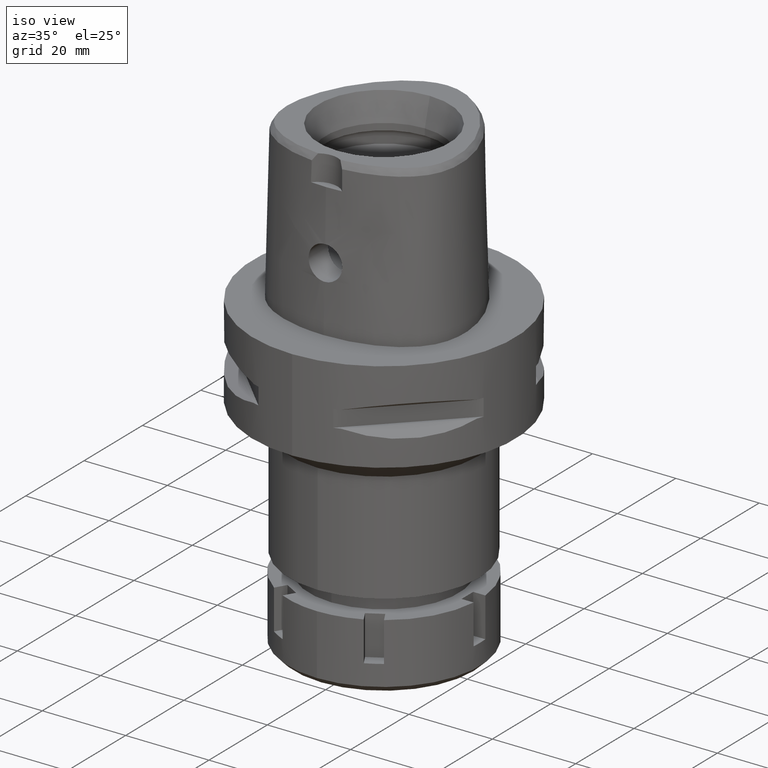
[diagram: clean part render]
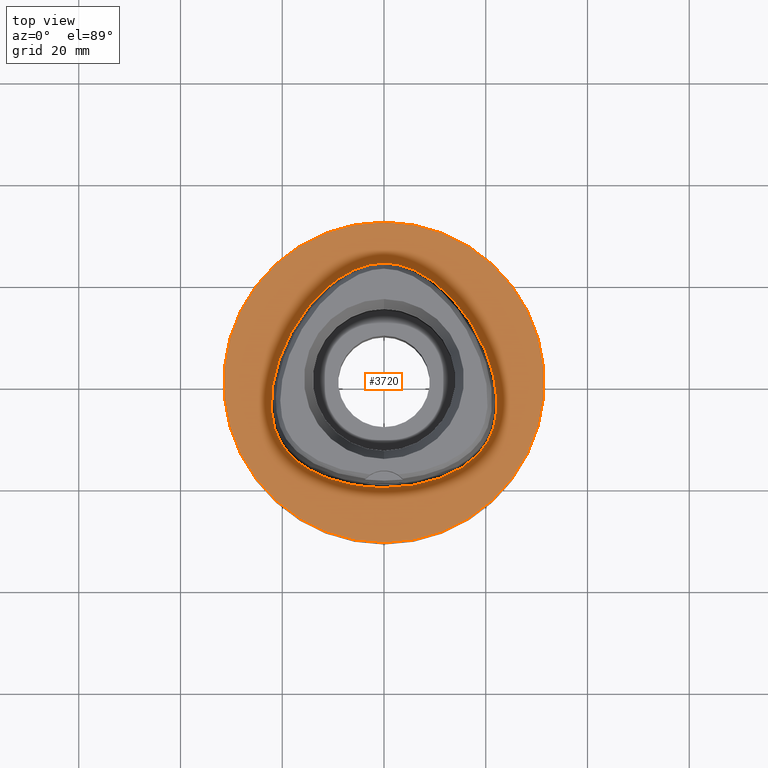
[diagram: tour spotlight — one face highlighted and labeled with its STEP entity id]
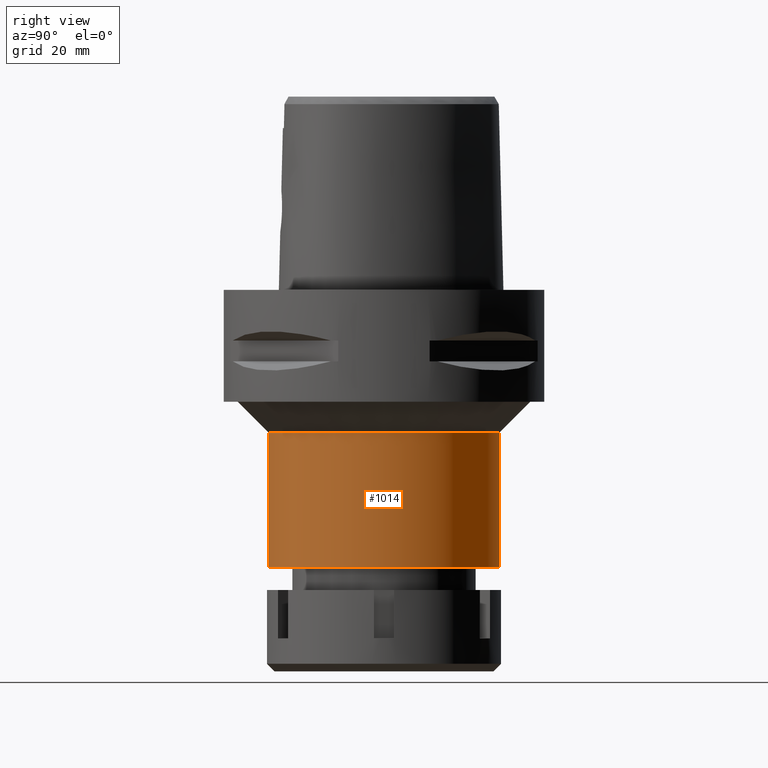
[diagram: tour spotlight — one face highlighted and labeled with its STEP entity id]
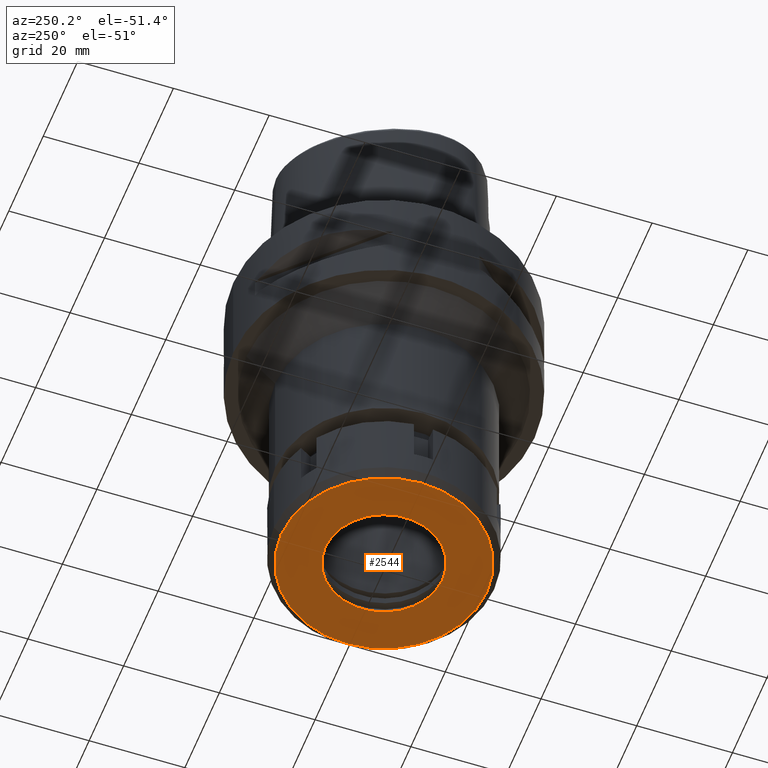
[diagram: tour spotlight — one face highlighted and labeled with its STEP entity id]
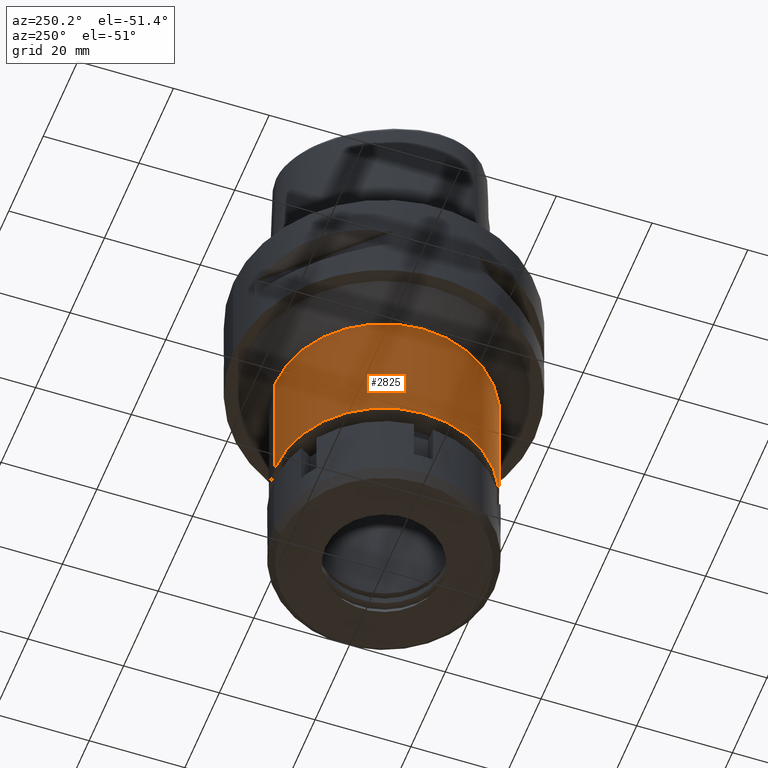
[diagram: tour spotlight — one face highlighted and labeled with its STEP entity id]
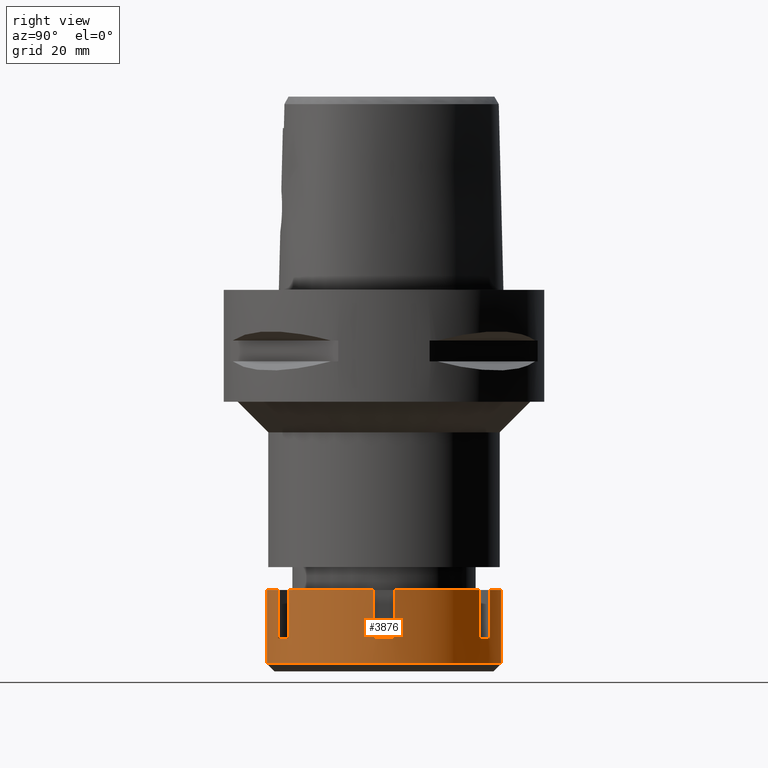
[diagram: tour spotlight — one face highlighted and labeled with its STEP entity id]
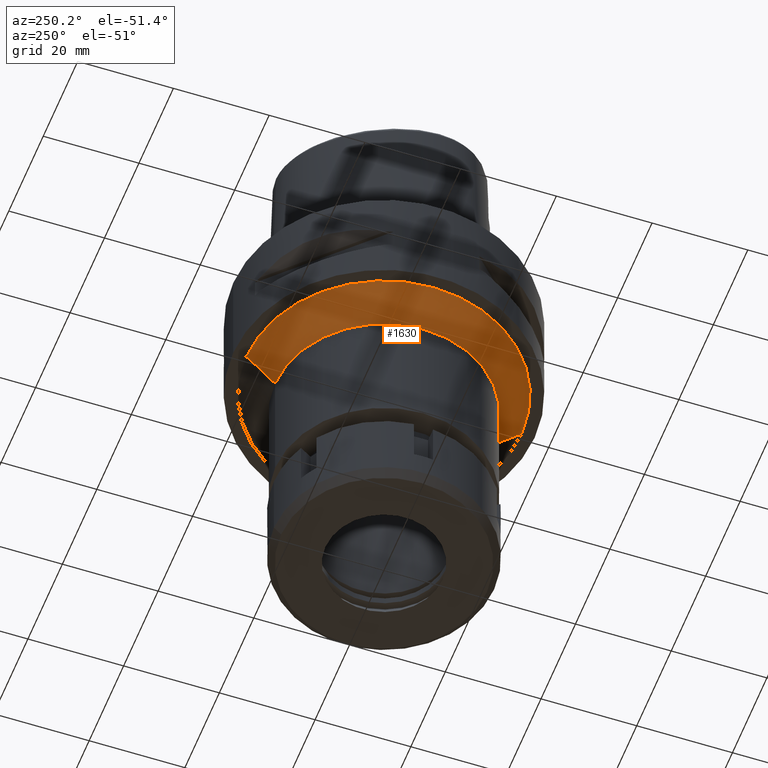
[diagram: tour spotlight — one face highlighted and labeled with its STEP entity id]
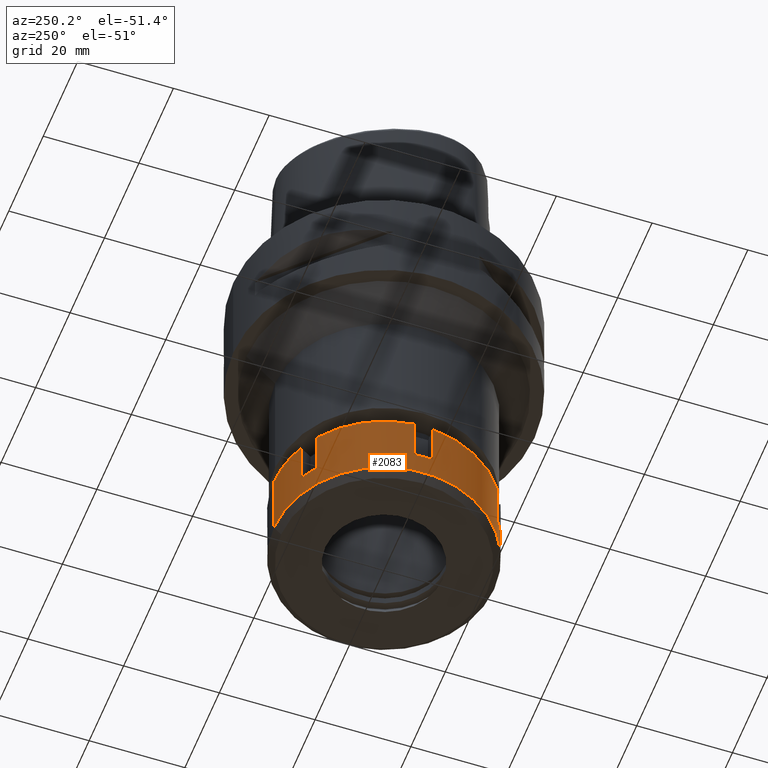
[diagram: tour spotlight — one face highlighted and labeled with its STEP entity id]
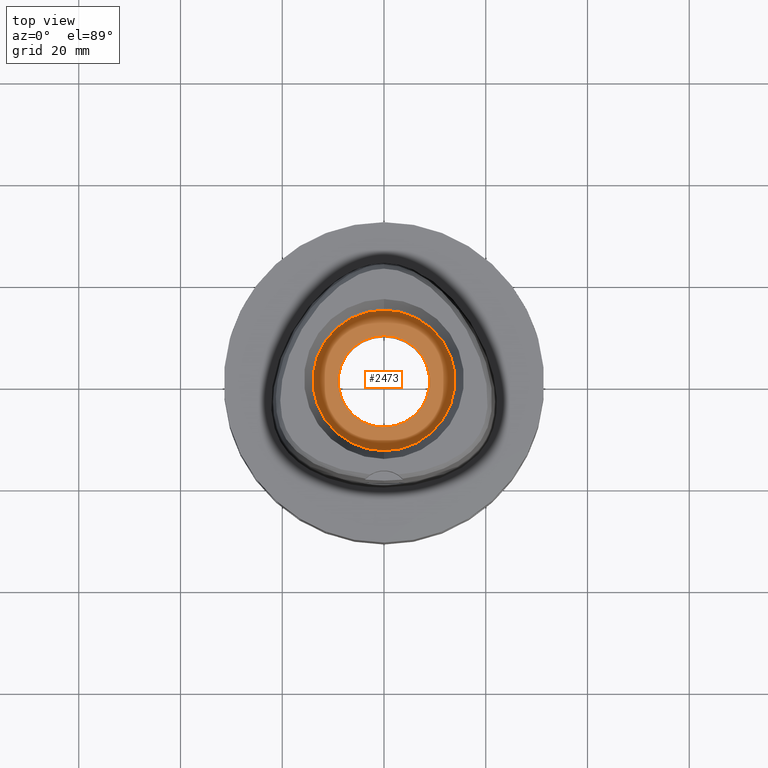
[diagram: tour spotlight — one face highlighted and labeled with its STEP entity id]
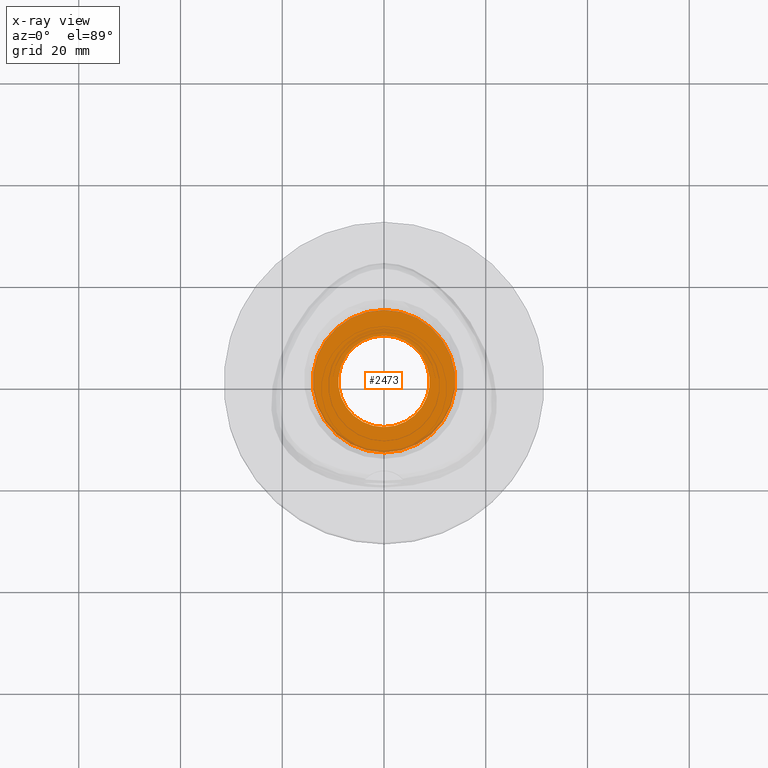
[diagram: x-ray of the same camera — body ghosted, this tour face saturated]
A machine part: a face-by-face anatomy tour. The part has 112 B-rep faces; the first image is the clean iso view, then the 8 largest visible faces are spotlighted one at a time (largest first), each with its STEP entity span.

Face 1 — top view, entity #3720. In plain terms, the highlighted planar face has unit normal (0, 0, -1).
Definition (entity closure, byte-faithful):
#8 = FACE_BOUND ( 'NONE', #2049, .T. ) ;
#88 = CARTESIAN_POINT ( 'NONE',  ( 0.0000000000000000000, 1.265672466918999865E-14, 0.0000000000000000000 ) ) ;
#187 = B_SPLINE_CURVE_WITH_KNOTS ( 'NONE', 3,
 ( #4892, #2000, #2367, #3636, #1640, #4127, #729, #2412, #4089, #1591, #5361, #5407, #2869, #2786, #4043, #260, #5303, #4533, #756, #340, #3717, #1723, #5001 ),
 .UNSPECIFIED., .F., .F.,
 ( 4, 1, 1, 1, 1, 1, 1, 1, 1, 1, 1, 1, 1, 1, 1, 1, 1, 1, 1, 1, 4 ),
 ( 0.0000000000000000000, 0.04166666666767999960, 0.08333333333429000789, 0.1250000000009000023, 0.1666666666676000219, 0.2500000000006999956, 0.3333333333339000282, 0.4166666666672000363, 0.5000000000004000134, 0.5416666666671000607, 0.5833333333336000459, 0.6250000000002999823, 0.6458333333335000148, 0.6666666666668999985, 0.6875000000001999512, 0.7083333333333999837, 0.7500000000001000311, 0.7916666666667000474, 0.8333333333333000637, 0.9166666666666000163, 1.000000000000000000 ),
 .UNSPECIFIED. ) ;
#204 = CARTESIAN_POINT ( 'NONE',  ( 5.098437016805039690, 22.52602538943070343, 5.133892459372943473E-08 ) ) ;
#220 = AXIS2_PLACEMENT_3D ( 'NONE', #977, #2286, #899 ) ;
#260 = CARTESIAN_POINT ( 'NONE',  ( -19.64947365162905513, -12.82525390115283948, 3.459377808626325213E-07 ) ) ;
#283 = CARTESIAN_POINT ( 'NONE',  ( 16.95889172514020871, -15.67838867086465626, 5.133892459372943473E-08 ) ) ;
#340 = CARTESIAN_POINT ( 'NONE',  ( -11.23259756429891887, -18.89324217933711836, 3.459377808626325213E-07 ) ) ;
#511 = DIRECTION ( 'NONE',  ( 0.0000000000000000000, -1.000000000000000000, 0.0000000000000000000 ) ) ;
#581 = VERTEX_POINT ( 'NONE', #712 ) ;
#596 = CARTESIAN_POINT ( 'NONE',  ( 6.589911981476000638E-11, 23.47499999998000320, 1.563934167354999746E-13 ) ) ;
#648 = CARTESIAN_POINT ( 'NONE',  ( 10.74572890975553108, 19.17433593651194101, 5.133892459372943473E-08 ) ) ;
#650 = ORIENTED_EDGE ( 'NONE', *, *, #3658, .F. ) ;
#712 = CARTESIAN_POINT ( 'NONE',  ( 0.0000000000000000000, 31.50000000000000000, 0.0000000000000000000 ) ) ;
#729 = CARTESIAN_POINT ( 'NONE',  ( -14.40795638293354664, 15.64093749438234049, 3.459377808626325213E-07 ) ) ;
#756 = CARTESIAN_POINT ( 'NONE',  ( -14.67337963990355121, -17.21410155496724670, 3.459377808626325213E-07 ) ) ;
#808 = FACE_OUTER_BOUND ( 'NONE', #3809, .T. ) ;
#892 = CARTESIAN_POINT ( 'NONE',  ( 0.0000000000000000000, -31.50000000000000000, 0.0000000000000000000 ) ) ;
#899 = DIRECTION ( 'NONE',  ( 0.0000000000000000000, 1.000000000000000000, 0.0000000000000000000 ) ) ;
#977 = CARTESIAN_POINT ( 'NONE',  ( 0.0000000000000000000, 1.265672466918999865E-14, 0.0000000000000000000 ) ) ;
#1001 = CARTESIAN_POINT ( 'NONE',  ( 0.8548392422176173122, 23.47499999872449195, 5.133892459372943473E-08 ) ) ;
#1024 = AXIS2_PLACEMENT_3D ( 'NONE', #88, #3331, #1670 ) ;
#1060 = CARTESIAN_POINT ( 'NONE',  ( 20.74942740758246984, 4.657187499561644906, 5.133892459372943473E-08 ) ) ;
#1087 = CARTESIAN_POINT ( 'NONE',  ( 21.97832647659170746, -0.2810937502245363095, 5.133892459372943473E-08 ) ) ;
#1532 = CARTESIAN_POINT ( 'NONE',  ( 18.06826688415234727, 10.43171874935659282, 5.133892459372943473E-08 ) ) ;
#1591 = CARTESIAN_POINT ( 'NONE',  ( -21.97832646930871903, -0.2810937515131003983, 3.459377808626325213E-07 ) ) ;
#1640 = CARTESIAN_POINT ( 'NONE',  ( -7.571159429969791077, 21.31457030501186267, 3.459377808626325213E-07 ) ) ;
#1670 = DIRECTION ( 'NONE',  ( 0.0000000000000000000, -1.000000000000000000, 0.0000000000000000000 ) ) ;
#1723 = CARTESIAN_POINT ( 'NONE',  ( -2.113823672550860344, -20.67499999135608846, 3.459377808626325213E-07 ) ) ;
#1924 = CARTESIAN_POINT ( 'NONE',  ( 22.24453907726493895, -4.100468750007731700, 5.133892459372943473E-08 ) ) ;
#1969 = CARTESIAN_POINT ( 'NONE',  ( 21.55524825886109141, -8.996025390257862853, 5.133892459372943473E-08 ) ) ;
#2000 = CARTESIAN_POINT ( 'NONE',  ( -0.8548392416841041896, 23.47499999135873949, 3.459377808626325213E-07 ) ) ;
#2049 = EDGE_LOOP ( 'NONE', ( #650, #2775 ) ) ;
#2136 = DIRECTION ( 'NONE',  ( 0.0000000000000000000, 0.0000000000000000000, -1.000000000000000000 ) ) ;
#2285 = CARTESIAN_POINT ( 'NONE',  ( 14.40795638859523642, 15.64093749916761666, 5.133892459372943473E-08 ) ) ;
#2286 = DIRECTION ( 'NONE',  ( 0.0000000000000000000, 0.0000000000000000000, -1.000000000000000000 ) ) ;
#2309 = CARTESIAN_POINT ( 'NONE',  ( 20.34961798445548453, -11.74885742122440035, 5.133892459372943473E-08 ) ) ;
#2327 = CARTESIAN_POINT ( 'NONE',  ( 6.589911981476000638E-11, 23.47499999998000320, 1.563934167354999746E-13 ) ) ;
#2348 = CIRCLE ( 'NONE', #220, 31.50000000000000000 ) ;
#2367 = CARTESIAN_POINT ( 'NONE',  ( -2.564517725179087826, 23.29328124148293355, 3.459377808626325213E-07 ) ) ;
#2368 = CARTESIAN_POINT ( 'NONE',  ( 20.93173252094357295, -10.60431640572513423, 5.133892459372943473E-08 ) ) ;
#2412 = CARTESIAN_POINT ( 'NONE',  ( -18.06826687773854090, 10.43171874565434898, 3.459377808626325213E-07 ) ) ;
#2611 = CIRCLE ( 'NONE', #1024, 31.50000000000000000 ) ;
#2775 = ORIENTED_EDGE ( 'NONE', *, *, #4422, .F. ) ;
#2786 = CARTESIAN_POINT ( 'NONE',  ( -20.93173251419439396, -10.60431640273427334, 3.459377808626325213E-07 ) ) ;
#2869 = CARTESIAN_POINT ( 'NONE',  ( -21.55524825177849024, -8.996025388152485647, 3.459377808626325213E-07 ) ) ;
#3197 = CARTESIAN_POINT ( 'NONE',  ( 19.64947365759156384, -12.82525390549806232, 5.133892459372943473E-08 ) ) ;
#3331 = DIRECTION ( 'NONE',  ( 0.0000000000000000000, 0.0000000000000000000, -1.000000000000000000 ) ) ;
#3545 = B_SPLINE_CURVE_WITH_KNOTS ( 'NONE', 3,
 ( #3964, #4845, #4428, #4374, #4066, #283, #3550, #3197, #2309, #2368, #1969, #5218, #1924, #1087, #1060, #1532, #2285, #648, #3990, #204, #4893, #1001, #596 ),
 .UNSPECIFIED., .F., .F.,
 ( 4, 1, 1, 1, 1, 1, 1, 1, 1, 1, 1, 1, 1, 1, 1, 1, 1, 1, 1, 1, 4 ),
 ( 0.0000000000000000000, 0.08333333333346000515, 0.1666666666668000230, 0.2083333333334000115, 0.2500000000000000000, 0.2916666666666999919, 0.3125000000000000000, 0.3333333333333000081, 0.3541666666666999919, 0.3750000000000000000, 0.4166666666666999919, 0.4583333333332000326, 0.4999999999998999689, 0.5833333333332000326, 0.6666666666664999852, 0.7499999999998000488, 0.8333333333329999704, 0.8749999999997000177, 0.9166666666664000651, 0.9583333333329999704, 1.000000000000000000 ),
 .UNSPECIFIED. ) ;
#3550 = CARTESIAN_POINT ( 'NONE',  ( 18.56841065047631645, -14.16937988192455045, 5.133892459372943473E-08 ) ) ;
#3636 = CARTESIAN_POINT ( 'NONE',  ( -5.098437014055448913, 22.52602538256833142, 3.459377808626325213E-07 ) ) ;
#3658 = EDGE_CURVE ( 'NONE', #4105, #5313, #187, .T. ) ;
#3703 = ORIENTED_EDGE ( 'NONE', *, *, #3891, .F. ) ;
#3717 = CARTESIAN_POINT ( 'NONE',  ( -6.341471017674845001, -20.29812499144884086, 3.459377808626325213E-07 ) ) ;
#3720 = ADVANCED_FACE ( 'NONE', ( #808, #8 ), #5439, .F. ) ;
#3809 = EDGE_LOOP ( 'NONE', ( #5231, #3703 ) ) ;
#3824 = CARTESIAN_POINT ( 'NONE',  ( -1.332771036187000036E-11, -20.67499999999999716, 1.592799965995999763E-13 ) ) ;
#3867 = VERTEX_POINT ( 'NONE', #892 ) ;
#3891 = EDGE_CURVE ( 'NONE', #3867, #581, #2611, .T. ) ;
#3964 = CARTESIAN_POINT ( 'NONE',  ( -1.332771036187000036E-11, -20.67499999999999716, 1.592799965995999763E-13 ) ) ;
#3990 = CARTESIAN_POINT ( 'NONE',  ( 7.571159433700400676, 21.31457031138521074, 5.133892459372943473E-08 ) ) ;
#4043 = CARTESIAN_POINT ( 'NONE',  ( -20.34961797806598582, -11.74885741753617552, 3.459377808626325213E-07 ) ) ;
#4066 = CARTESIAN_POINT ( 'NONE',  ( 14.67337964356189239, -17.21410156138248482, 5.133892459372943473E-08 ) ) ;
#4089 = CARTESIAN_POINT ( 'NONE',  ( -20.74942740061855417, 4.657187497051560321, 3.459377808626325213E-07 ) ) ;
#4105 = VERTEX_POINT ( 'NONE', #2327 ) ;
#4127 = CARTESIAN_POINT ( 'NONE',  ( -10.74572890499939959, 19.17433593084498966, 3.459377808626325213E-07 ) ) ;
#4288 = CARTESIAN_POINT ( 'NONE',  ( 0.0000000000000000000, 1.224646799146999965E-14, 0.0000000000000000000 ) ) ;
#4374 = CARTESIAN_POINT ( 'NONE',  ( 11.23259756683577137, -18.89324218628103580, 5.133892459372943473E-08 ) ) ;
#4422 = EDGE_CURVE ( 'NONE', #5313, #4105, #3545, .T. ) ;
#4428 = CARTESIAN_POINT ( 'NONE',  ( 6.341471018983529717, -20.29812499872887699, 5.133892459372944135E-08 ) ) ;
#4533 = CARTESIAN_POINT ( 'NONE',  ( -16.95889172056334004, -15.67838866504611417, 3.459377808626325213E-07 ) ) ;
#4845 = CARTESIAN_POINT ( 'NONE',  ( 2.113823672989667557, -20.67499999870904759, 5.133892459372943473E-08 ) ) ;
#4892 = CARTESIAN_POINT ( 'NONE',  ( 6.589911981476000638E-11, 23.47499999998000320, 1.563934167354999746E-13 ) ) ;
#4893 = CARTESIAN_POINT ( 'NONE',  ( 2.564517726692166377, 23.29328124873773476, 5.133892459372943473E-08 ) ) ;
#5001 = CARTESIAN_POINT ( 'NONE',  ( -1.332771036187000036E-11, -20.67499999999999716, 1.592799965995999763E-13 ) ) ;
#5218 = CARTESIAN_POINT ( 'NONE',  ( 22.05732874194318427, -6.847636718566505465, 5.133892459372943473E-08 ) ) ;
#5231 = ORIENTED_EDGE ( 'NONE', *, *, #5386, .F. ) ;
#5303 = CARTESIAN_POINT ( 'NONE',  ( -18.56841064512599360, -14.16937987684424272, 3.459377808626325213E-07 ) ) ;
#5313 = VERTEX_POINT ( 'NONE', #3824 ) ;
#5361 = CARTESIAN_POINT ( 'NONE',  ( -22.24453906986831342, -4.100468750050696443, 3.459377808626325213E-07 ) ) ;
#5386 = EDGE_CURVE ( 'NONE', #581, #3867, #2348, .T. ) ;
#5407 = CARTESIAN_POINT ( 'NONE',  ( -22.05732873462538990, -6.847636717514570925, 3.459377808626325213E-07 ) ) ;
#5410 = AXIS2_PLACEMENT_3D ( 'NONE', #4288, #2136, #511 ) ;
#5439 = PLANE ( 'NONE',  #5410 ) ;

Face 2 — right view, entity #1014. In plain terms, the highlighted cylindrical surface (partial cylindrical patch) has radius 22.75 mm, axis along (0, 0, -1).
Definition (entity closure, byte-faithful):
#3 = CARTESIAN_POINT ( 'NONE',  ( 0.0000000000000000000, -22.75000000000000000, -54.50000000000000000 ) ) ;
#214 = CARTESIAN_POINT ( 'NONE',  ( 0.0000000000000000000, 22.75000000000000000, -54.50000000000000000 ) ) ;
#300 = CIRCLE ( 'NONE', #3483, 22.75000000000000000 ) ;
#355 = DIRECTION ( 'NONE',  ( 0.0000000000000000000, 0.0000000000000000000, 1.000000000000000000 ) ) ;
#666 = AXIS2_PLACEMENT_3D ( 'NONE', #1339, #4212, #3060 ) ;
#849 = CARTESIAN_POINT ( 'NONE',  ( 0.0000000000000000000, 22.75000000000000000, -28.00000000000000000 ) ) ;
#867 = ORIENTED_EDGE ( 'NONE', *, *, #4778, .T. ) ;
#1014 = ADVANCED_FACE ( 'NONE', ( #2267 ), #2682, .T. ) ;
#1124 = AXIS2_PLACEMENT_3D ( 'NONE', #3974, #3998, #5229 ) ;
#1167 = EDGE_CURVE ( 'NONE', #1921, #2298, #3747, .T. ) ;
#1241 = ORIENTED_EDGE ( 'NONE', *, *, #3418, .T. ) ;
#1339 = CARTESIAN_POINT ( 'NONE',  ( 0.0000000000000000000, 0.0000000000000000000, -28.00000000000000000 ) ) ;
#1921 = VERTEX_POINT ( 'NONE', #3733 ) ;
#2068 = DIRECTION ( 'NONE',  ( 0.0000000000000000000, -1.000000000000000000, 0.0000000000000000000 ) ) ;
#2080 = CARTESIAN_POINT ( 'NONE',  ( 0.0000000000000000000, 1.265672466918999865E-14, -54.50000000000000000 ) ) ;
#2114 = CARTESIAN_POINT ( 'NONE',  ( 0.0000000000000000000, -22.75000000000000000, -28.00000000000000000 ) ) ;
#2267 = FACE_OUTER_BOUND ( 'NONE', #5179, .T. ) ;
#2298 = VERTEX_POINT ( 'NONE', #214 ) ;
#2682 = CYLINDRICAL_SURFACE ( 'NONE', #1124, 22.75000000000000000 ) ;
#3060 = DIRECTION ( 'NONE',  ( 0.0000000000000000000, 1.000000000000000000, 0.0000000000000000000 ) ) ;
#3088 = DIRECTION ( 'NONE',  ( 0.0000000000000000000, 0.0000000000000000000, -1.000000000000000000 ) ) ;
#3244 = VECTOR ( 'NONE', #3088, 1000.000000000000000 ) ;
#3414 = LINE ( 'NONE', #2114, #3574 ) ;
#3418 = EDGE_CURVE ( 'NONE', #1921, #4677, #5061, .T. ) ;
#3483 = AXIS2_PLACEMENT_3D ( 'NONE', #2080, #355, #2068 ) ;
#3540 = EDGE_CURVE ( 'NONE', #4677, #4532, #3414, .T. ) ;
#3574 = VECTOR ( 'NONE', #4614, 1000.000000000000000 ) ;
#3733 = CARTESIAN_POINT ( 'NONE',  ( 0.0000000000000000000, 22.75000000000000000, -28.00000000000000000 ) ) ;
#3747 = LINE ( 'NONE', #849, #3244 ) ;
#3974 = CARTESIAN_POINT ( 'NONE',  ( 0.0000000000000000000, 1.265672466918999865E-14, 3.350000000000000089 ) ) ;
#3991 = ORIENTED_EDGE ( 'NONE', *, *, #3540, .T. ) ;
#3998 = DIRECTION ( 'NONE',  ( 0.0000000000000000000, 0.0000000000000000000, -1.000000000000000000 ) ) ;
#4212 = DIRECTION ( 'NONE',  ( 0.0000000000000000000, 0.0000000000000000000, -1.000000000000000000 ) ) ;
#4393 = CARTESIAN_POINT ( 'NONE',  ( 0.0000000000000000000, -22.75000000000000000, -28.00000000000000000 ) ) ;
#4532 = VERTEX_POINT ( 'NONE', #3 ) ;
#4614 = DIRECTION ( 'NONE',  ( 0.0000000000000000000, 0.0000000000000000000, -1.000000000000000000 ) ) ;
#4677 = VERTEX_POINT ( 'NONE', #4393 ) ;
#4745 = ORIENTED_EDGE ( 'NONE', *, *, #1167, .F. ) ;
#4778 = EDGE_CURVE ( 'NONE', #4532, #2298, #300, .T. ) ;
#5061 = CIRCLE ( 'NONE', #666, 22.75000000000000000 ) ;
#5179 = EDGE_LOOP ( 'NONE', ( #1241, #3991, #867, #4745 ) ) ;
#5229 = DIRECTION ( 'NONE',  ( 0.0000000000000000000, -1.000000000000000000, 0.0000000000000000000 ) ) ;

Face 3 — auxiliary view, entity #2544. In plain terms, the highlighted planar face has unit normal (0, 0, -1).
Definition (entity closure, byte-faithful):
#59 = EDGE_CURVE ( 'NONE', #4412, #875, #4543, .T. ) ;
#67 = AXIS2_PLACEMENT_3D ( 'NONE', #4763, #4345, #3527 ) ;
#163 = EDGE_LOOP ( 'NONE', ( #4834, #4441 ) ) ;
#485 = CARTESIAN_POINT ( 'NONE',  ( 0.0000000000000000000, -12.25000000000000000, -16.00000000000000000 ) ) ;
#682 = EDGE_CURVE ( 'NONE', #2386, #4131, #3326, .T. ) ;
#751 = AXIS2_PLACEMENT_3D ( 'NONE', #874, #2058, #790 ) ;
#753 = AXIS2_PLACEMENT_3D ( 'NONE', #1967, #3768, #5406 ) ;
#790 = DIRECTION ( 'NONE',  ( 0.0000000000000000000, -1.000000000000000000, 0.0000000000000000000 ) ) ;
#814 = DIRECTION ( 'NONE',  ( 0.0000000000000000000, -1.000000000000000000, 0.0000000000000000000 ) ) ;
#874 = CARTESIAN_POINT ( 'NONE',  ( 0.0000000000000000000, 0.0000000000000000000, -16.00000000000000000 ) ) ;
#875 = VERTEX_POINT ( 'NONE', #4438 ) ;
#1183 = EDGE_LOOP ( 'NONE', ( #4452, #2226 ) ) ;
#1634 = DIRECTION ( 'NONE',  ( 0.0000000000000000000, 0.0000000000000000000, -1.000000000000000000 ) ) ;
#1826 = AXIS2_PLACEMENT_3D ( 'NONE', #3338, #1977, #814 ) ;
#1845 = PLANE ( 'NONE',  #67 ) ;
#1967 = CARTESIAN_POINT ( 'NONE',  ( 0.0000000000000000000, 0.0000000000000000000, -16.00000000000000000 ) ) ;
#1977 = DIRECTION ( 'NONE',  ( 0.0000000000000000000, 0.0000000000000000000, -1.000000000000000000 ) ) ;
#2010 = EDGE_CURVE ( 'NONE', #4131, #2386, #4558, .T. ) ;
#2058 = DIRECTION ( 'NONE',  ( 0.0000000000000000000, 0.0000000000000000000, 1.000000000000000000 ) ) ;
#2219 = CARTESIAN_POINT ( 'NONE',  ( 0.0000000000000000000, 12.25000000000000000, -16.00000000000000000 ) ) ;
#2226 = ORIENTED_EDGE ( 'NONE', *, *, #682, .F. ) ;
#2386 = VERTEX_POINT ( 'NONE', #485 ) ;
#2468 = DIRECTION ( 'NONE',  ( 0.0000000000000000000, 1.000000000000000000, 0.0000000000000000000 ) ) ;
#2544 = ADVANCED_FACE ( 'NONE', ( #2710, #5195 ), #1845, .T. ) ;
#2710 = FACE_OUTER_BOUND ( 'NONE', #163, .T. ) ;
#3326 = CIRCLE ( 'NONE', #1826, 12.25000000000000000 ) ;
#3338 = CARTESIAN_POINT ( 'NONE',  ( 0.0000000000000000000, 0.0000000000000000000, -16.00000000000000000 ) ) ;
#3487 = CIRCLE ( 'NONE', #751, 21.50000000000000000 ) ;
#3527 = DIRECTION ( 'NONE',  ( 0.0000000000000000000, -1.000000000000000000, 0.0000000000000000000 ) ) ;
#3689 = AXIS2_PLACEMENT_3D ( 'NONE', #4938, #1634, #2468 ) ;
#3768 = DIRECTION ( 'NONE',  ( 0.0000000000000000000, 0.0000000000000000000, 1.000000000000000000 ) ) ;
#3954 = CARTESIAN_POINT ( 'NONE',  ( 0.0000000000000000000, 21.50000000000000000, -16.00000000000000000 ) ) ;
#4131 = VERTEX_POINT ( 'NONE', #2219 ) ;
#4345 = DIRECTION ( 'NONE',  ( 0.0000000000000000000, 0.0000000000000000000, -1.000000000000000000 ) ) ;
#4412 = VERTEX_POINT ( 'NONE', #3954 ) ;
#4438 = CARTESIAN_POINT ( 'NONE',  ( 0.0000000000000000000, -21.50000000000000000, -16.00000000000000000 ) ) ;
#4441 = ORIENTED_EDGE ( 'NONE', *, *, #5221, .F. ) ;
#4452 = ORIENTED_EDGE ( 'NONE', *, *, #2010, .F. ) ;
#4543 = CIRCLE ( 'NONE', #753, 21.50000000000000000 ) ;
#4558 = CIRCLE ( 'NONE', #3689, 12.25000000000000000 ) ;
#4763 = CARTESIAN_POINT ( 'NONE',  ( 0.0000000000000000000, 0.0000000000000000000, -16.00000000000000000 ) ) ;
#4834 = ORIENTED_EDGE ( 'NONE', *, *, #59, .F. ) ;
#4938 = CARTESIAN_POINT ( 'NONE',  ( 0.0000000000000000000, 0.0000000000000000000, -16.00000000000000000 ) ) ;
#5195 = FACE_BOUND ( 'NONE', #1183, .T. ) ;
#5221 = EDGE_CURVE ( 'NONE', #875, #4412, #3487, .T. ) ;
#5406 = DIRECTION ( 'NONE',  ( 0.0000000000000000000, 1.000000000000000000, 0.0000000000000000000 ) ) ;

Face 4 — auxiliary view, entity #2825. In plain terms, the highlighted cylindrical surface (partial cylindrical patch) has radius 22.75 mm, axis along (0, 0, -1).
Definition (entity closure, byte-faithful):
#3 = CARTESIAN_POINT ( 'NONE',  ( 0.0000000000000000000, -22.75000000000000000, -54.50000000000000000 ) ) ;
#214 = CARTESIAN_POINT ( 'NONE',  ( 0.0000000000000000000, 22.75000000000000000, -54.50000000000000000 ) ) ;
#415 = CYLINDRICAL_SURFACE ( 'NONE', #5265, 22.75000000000000000 ) ;
#464 = EDGE_CURVE ( 'NONE', #2298, #4532, #2892, .T. ) ;
#725 = ORIENTED_EDGE ( 'NONE', *, *, #1167, .T. ) ;
#849 = CARTESIAN_POINT ( 'NONE',  ( 0.0000000000000000000, 22.75000000000000000, -28.00000000000000000 ) ) ;
#1167 = EDGE_CURVE ( 'NONE', #1921, #2298, #3747, .T. ) ;
#1714 = DIRECTION ( 'NONE',  ( 0.0000000000000000000, 0.0000000000000000000, -1.000000000000000000 ) ) ;
#1851 = EDGE_LOOP ( 'NONE', ( #4786, #2750, #2900, #725 ) ) ;
#1921 = VERTEX_POINT ( 'NONE', #3733 ) ;
#2103 = DIRECTION ( 'NONE',  ( 0.0000000000000000000, -1.000000000000000000, 0.0000000000000000000 ) ) ;
#2114 = CARTESIAN_POINT ( 'NONE',  ( 0.0000000000000000000, -22.75000000000000000, -28.00000000000000000 ) ) ;
#2227 = DIRECTION ( 'NONE',  ( 0.0000000000000000000, -1.000000000000000000, 0.0000000000000000000 ) ) ;
#2298 = VERTEX_POINT ( 'NONE', #214 ) ;
#2374 = DIRECTION ( 'NONE',  ( 0.0000000000000000000, 0.0000000000000000000, 1.000000000000000000 ) ) ;
#2461 = EDGE_CURVE ( 'NONE', #4677, #1921, #4738, .T. ) ;
#2750 = ORIENTED_EDGE ( 'NONE', *, *, #3540, .F. ) ;
#2770 = DIRECTION ( 'NONE',  ( 0.0000000000000000000, 1.000000000000000000, 0.0000000000000000000 ) ) ;
#2825 = ADVANCED_FACE ( 'NONE', ( #4691 ), #415, .T. ) ;
#2892 = CIRCLE ( 'NONE', #3586, 22.75000000000000000 ) ;
#2900 = ORIENTED_EDGE ( 'NONE', *, *, #2461, .T. ) ;
#3088 = DIRECTION ( 'NONE',  ( 0.0000000000000000000, 0.0000000000000000000, -1.000000000000000000 ) ) ;
#3204 = CARTESIAN_POINT ( 'NONE',  ( 0.0000000000000000000, 1.265672466918999865E-14, -54.50000000000000000 ) ) ;
#3244 = VECTOR ( 'NONE', #3088, 1000.000000000000000 ) ;
#3414 = LINE ( 'NONE', #2114, #3574 ) ;
#3540 = EDGE_CURVE ( 'NONE', #4677, #4532, #3414, .T. ) ;
#3574 = VECTOR ( 'NONE', #4614, 1000.000000000000000 ) ;
#3586 = AXIS2_PLACEMENT_3D ( 'NONE', #3204, #2374, #2770 ) ;
#3733 = CARTESIAN_POINT ( 'NONE',  ( 0.0000000000000000000, 22.75000000000000000, -28.00000000000000000 ) ) ;
#3747 = LINE ( 'NONE', #849, #3244 ) ;
#3863 = AXIS2_PLACEMENT_3D ( 'NONE', #3940, #5258, #2227 ) ;
#3940 = CARTESIAN_POINT ( 'NONE',  ( 0.0000000000000000000, 0.0000000000000000000, -28.00000000000000000 ) ) ;
#4251 = CARTESIAN_POINT ( 'NONE',  ( 0.0000000000000000000, 1.265672466918999865E-14, 3.350000000000000089 ) ) ;
#4393 = CARTESIAN_POINT ( 'NONE',  ( 0.0000000000000000000, -22.75000000000000000, -28.00000000000000000 ) ) ;
#4532 = VERTEX_POINT ( 'NONE', #3 ) ;
#4614 = DIRECTION ( 'NONE',  ( 0.0000000000000000000, 0.0000000000000000000, -1.000000000000000000 ) ) ;
#4677 = VERTEX_POINT ( 'NONE', #4393 ) ;
#4691 = FACE_OUTER_BOUND ( 'NONE', #1851, .T. ) ;
#4738 = CIRCLE ( 'NONE', #3863, 22.75000000000000000 ) ;
#4786 = ORIENTED_EDGE ( 'NONE', *, *, #464, .T. ) ;
#5258 = DIRECTION ( 'NONE',  ( 0.0000000000000000000, 0.0000000000000000000, -1.000000000000000000 ) ) ;
#5265 = AXIS2_PLACEMENT_3D ( 'NONE', #4251, #1714, #2103 ) ;

Face 5 — right view, entity #3876. In plain terms, the highlighted cylindrical surface (partial cylindrical patch) has radius 23 mm, axis along (0, 0, -1).
Definition (entity closure, byte-faithful):
#20 = ORIENTED_EDGE ( 'NONE', *, *, #625, .F. ) ;
#184 = EDGE_CURVE ( 'NONE', #3948, #3417, #1720, .T. ) ;
#185 = EDGE_LOOP ( 'NONE', ( #1404, #3186, #189, #5232, #2198, #291, #3879, #1559, #20, #2459, #1528, #3611, #440, #1137, #1783, #3985 ) ) ;
#189 = ORIENTED_EDGE ( 'NONE', *, *, #5155, .F. ) ;
#238 = CIRCLE ( 'NONE', #3333, 22.99999999999999289 ) ;
#291 = ORIENTED_EDGE ( 'NONE', *, *, #501, .T. ) ;
#351 = VERTEX_POINT ( 'NONE', #4911 ) ;
#394 = CIRCLE ( 'NONE', #4094, 23.00000000000000355 ) ;
#422 = CARTESIAN_POINT ( 'NONE',  ( 9.724388429822001356, 20.84313483297999881, -9.500000000000000000 ) ) ;
#440 = ORIENTED_EDGE ( 'NONE', *, *, #4994, .F. ) ;
#443 = EDGE_CURVE ( 'NONE', #4298, #5357, #4641, .T. ) ;
#471 = EDGE_CURVE ( 'NONE', #1120, #3417, #1202, .T. ) ;
#495 = EDGE_CURVE ( 'NONE', #4076, #5266, #1452, .T. ) ;
#501 = EDGE_CURVE ( 'NONE', #4867, #5266, #2003, .T. ) ;
#625 = EDGE_CURVE ( 'NONE', #4401, #1628, #4159, .T. ) ;
#834 = CIRCLE ( 'NONE', #3923, 23.00000000000000355 ) ;
#842 = AXIS2_PLACEMENT_3D ( 'NONE', #2163, #3025, #3769 ) ;
#852 = VECTOR ( 'NONE', #4593, 1000.000000000000000 ) ;
#905 = DIRECTION ( 'NONE',  ( 0.9962121075990957308, 0.08695652173912968297, 0.0000000000000000000 ) ) ;
#919 = CARTESIAN_POINT ( 'NONE',  ( 0.0000000000000000000, 23.00000000000000000, -14.50000000000000000 ) ) ;
#1017 = VECTOR ( 'NONE', #5140, 1000.000000000000000 ) ;
#1021 = CARTESIAN_POINT ( 'NONE',  ( 22.91287847478000117, 2.000000000000000000, -9.500000000000000000 ) ) ;
#1040 = CARTESIAN_POINT ( 'NONE',  ( 0.0000000000000000000, 0.0000000000000000000, 0.0000000000000000000 ) ) ;
#1120 = VERTEX_POINT ( 'NONE', #2644 ) ;
#1137 = ORIENTED_EDGE ( 'NONE', *, *, #471, .T. ) ;
#1178 = CARTESIAN_POINT ( 'NONE',  ( 22.91287847478000117, 2.000000000000000000, -9.500000000000000000 ) ) ;
#1202 = CIRCLE ( 'NONE', #1379, 23.00000000000000000 ) ;
#1209 = DIRECTION ( 'NONE',  ( 0.0000000000000000000, 0.0000000000000000000, 1.000000000000000000 ) ) ;
#1325 = DIRECTION ( 'NONE',  ( 0.0000000000000000000, 0.0000000000000000000, -1.000000000000000000 ) ) ;
#1326 = DIRECTION ( 'NONE',  ( 0.4227994969487119392, -0.9062232536080258027, 0.0000000000000000000 ) ) ;
#1336 = FACE_OUTER_BOUND ( 'NONE', #185, .T. ) ;
#1348 = DIRECTION ( 'NONE',  ( 0.0000000000000000000, 0.0000000000000000000, -1.000000000000000000 ) ) ;
#1350 = DIRECTION ( 'NONE',  ( 0.0000000000000000000, 0.0000000000000000000, 1.000000000000000000 ) ) ;
#1379 = AXIS2_PLACEMENT_3D ( 'NONE', #1040, #3995, #4876 ) ;
#1404 = ORIENTED_EDGE ( 'NONE', *, *, #3789, .F. ) ;
#1426 = DIRECTION ( 'NONE',  ( 0.0000000000000000000, 0.0000000000000000000, -1.000000000000000000 ) ) ;
#1452 = LINE ( 'NONE', #5263, #4464 ) ;
#1528 = ORIENTED_EDGE ( 'NONE', *, *, #5359, .T. ) ;
#1559 = ORIENTED_EDGE ( 'NONE', *, *, #3692, .T. ) ;
#1628 = VERTEX_POINT ( 'NONE', #3715 ) ;
#1715 = DIRECTION ( 'NONE',  ( 0.5734126106503841802, 0.8192667318688773292, 0.0000000000000000000 ) ) ;
#1720 = LINE ( 'NONE', #422, #4635 ) ;
#1721 = VECTOR ( 'NONE', #1348, 1000.000000000000000 ) ;
#1728 = CARTESIAN_POINT ( 'NONE',  ( 0.0000000000000000000, -23.00000000000000000, 0.0000000000000000000 ) ) ;
#1741 = DIRECTION ( 'NONE',  ( 0.0000000000000000000, 0.0000000000000000000, -1.000000000000000000 ) ) ;
#1758 = DIRECTION ( 'NONE',  ( 0.0000000000000000000, 0.0000000000000000000, -1.000000000000000000 ) ) ;
#1783 = ORIENTED_EDGE ( 'NONE', *, *, #184, .F. ) ;
#1827 = AXIS2_PLACEMENT_3D ( 'NONE', #5092, #1325, #905 ) ;
#1901 = DIRECTION ( 'NONE',  ( 0.9962121075990957308, -0.08695652173912968297, 0.0000000000000000000 ) ) ;
#1944 = EDGE_CURVE ( 'NONE', #3948, #4685, #4476, .T. ) ;
#2003 = CIRCLE ( 'NONE', #2813, 23.00000000000000355 ) ;
#2021 = DIRECTION ( 'NONE',  ( 0.0000000000000000000, 0.0000000000000000000, -1.000000000000000000 ) ) ;
#2035 = LINE ( 'NONE', #1178, #4188 ) ;
#2081 = DIRECTION ( 'NONE',  ( 0.5734126106504978670, -0.8192667318687978373, 0.0000000000000000000 ) ) ;
#2147 = EDGE_CURVE ( 'NONE', #351, #3302, #238, .T. ) ;
#2163 = CARTESIAN_POINT ( 'NONE',  ( 0.0000000000000000000, 0.0000000000000000000, 0.0000000000000000000 ) ) ;
#2195 = DIRECTION ( 'NONE',  ( 0.0000000000000000000, 0.0000000000000000000, -1.000000000000000000 ) ) ;
#2198 = ORIENTED_EDGE ( 'NONE', *, *, #5014, .F. ) ;
#2232 = LINE ( 'NONE', #3914, #1017 ) ;
#2271 = VERTEX_POINT ( 'NONE', #4770 ) ;
#2349 = VECTOR ( 'NONE', #2195, 1000.000000000000000 ) ;
#2384 = DIRECTION ( 'NONE',  ( 0.4227994969487938182, 0.9062232536079875000, 0.0000000000000000000 ) ) ;
#2459 = ORIENTED_EDGE ( 'NONE', *, *, #4862, .T. ) ;
#2498 = LINE ( 'NONE', #3818, #2349 ) ;
#2586 = CARTESIAN_POINT ( 'NONE',  ( 9.724388429822001356, 20.84313483297999881, 0.0000000000000000000 ) ) ;
#2631 = CARTESIAN_POINT ( 'NONE',  ( 0.0000000000000000000, 0.0000000000000000000, -14.50000000000000000 ) ) ;
#2644 = CARTESIAN_POINT ( 'NONE',  ( 0.0000000000000000000, 23.00000000000000000, 0.0000000000000000000 ) ) ;
#2705 = VECTOR ( 'NONE', #1758, 1000.000000000000000 ) ;
#2813 = AXIS2_PLACEMENT_3D ( 'NONE', #3644, #1426, #1901 ) ;
#2905 = CARTESIAN_POINT ( 'NONE',  ( 13.18849004495999999, -18.84313483298000236, 0.0000000000000000000 ) ) ;
#2912 = EDGE_CURVE ( 'NONE', #2271, #3340, #4998, .T. ) ;
#3025 = DIRECTION ( 'NONE',  ( 0.0000000000000000000, 0.0000000000000000000, -1.000000000000000000 ) ) ;
#3120 = CARTESIAN_POINT ( 'NONE',  ( 0.0000000000000000000, 23.00000000000000000, 0.0000000000000000000 ) ) ;
#3186 = ORIENTED_EDGE ( 'NONE', *, *, #2147, .T. ) ;
#3302 = VERTEX_POINT ( 'NONE', #3668 ) ;
#3333 = AXIS2_PLACEMENT_3D ( 'NONE', #4252, #4636, #1715 ) ;
#3340 = VERTEX_POINT ( 'NONE', #919 ) ;
#3357 = CYLINDRICAL_SURFACE ( 'NONE', #842, 23.00000000000000000 ) ;
#3408 = DIRECTION ( 'NONE',  ( 0.0000000000000000000, 0.0000000000000000000, 1.000000000000000000 ) ) ;
#3417 = VERTEX_POINT ( 'NONE', #2586 ) ;
#3426 = CARTESIAN_POINT ( 'NONE',  ( 22.91287847478000117, -2.000000000000000000, 0.0000000000000000000 ) ) ;
#3482 = CARTESIAN_POINT ( 'NONE',  ( 13.18849004495999999, 18.84313483298000236, -9.500000000000000000 ) ) ;
#3514 = VERTEX_POINT ( 'NONE', #1728 ) ;
#3520 = CARTESIAN_POINT ( 'NONE',  ( 13.18849004495999999, -18.84313483298000236, -9.500000000000000000 ) ) ;
#3611 = ORIENTED_EDGE ( 'NONE', *, *, #2912, .T. ) ;
#3644 = CARTESIAN_POINT ( 'NONE',  ( 0.0000000000000000000, 0.0000000000000000000, 0.0000000000000000000 ) ) ;
#3668 = CARTESIAN_POINT ( 'NONE',  ( 22.91287847478000117, 2.000000000000000000, 0.0000000000000000000 ) ) ;
#3692 = EDGE_CURVE ( 'NONE', #4076, #1628, #394, .T. ) ;
#3715 = CARTESIAN_POINT ( 'NONE',  ( 9.724388429820001178, -20.84313483297999881, -9.500000000000000000 ) ) ;
#3769 = DIRECTION ( 'NONE',  ( 0.0000000000000000000, -1.000000000000000000, 0.0000000000000000000 ) ) ;
#3789 = EDGE_CURVE ( 'NONE', #351, #4685, #2498, .T. ) ;
#3818 = CARTESIAN_POINT ( 'NONE',  ( 13.18849004495999999, 18.84313483298000236, 0.0000000000000000000 ) ) ;
#3832 = CARTESIAN_POINT ( 'NONE',  ( 0.0000000000000000000, 0.0000000000000000000, 0.0000000000000000000 ) ) ;
#3876 = ADVANCED_FACE ( 'NONE', ( #1336 ), #3357, .T. ) ;
#3879 = ORIENTED_EDGE ( 'NONE', *, *, #495, .F. ) ;
#3914 = CARTESIAN_POINT ( 'NONE',  ( 22.91287847478000117, -2.000000000000000000, 0.0000000000000000000 ) ) ;
#3923 = AXIS2_PLACEMENT_3D ( 'NONE', #3832, #1741, #1326 ) ;
#3948 = VERTEX_POINT ( 'NONE', #4755 ) ;
#3985 = ORIENTED_EDGE ( 'NONE', *, *, #1944, .T. ) ;
#3995 = DIRECTION ( 'NONE',  ( 0.0000000000000000000, 0.0000000000000000000, -1.000000000000000000 ) ) ;
#4076 = VERTEX_POINT ( 'NONE', #3520 ) ;
#4094 = AXIS2_PLACEMENT_3D ( 'NONE', #5078, #4259, #2081 ) ;
#4159 = LINE ( 'NONE', #5415, #852 ) ;
#4168 = LINE ( 'NONE', #3120, #1721 ) ;
#4188 = VECTOR ( 'NONE', #1209, 1000.000000000000000 ) ;
#4252 = CARTESIAN_POINT ( 'NONE',  ( 0.0000000000000000000, 0.0000000000000000000, 0.0000000000000000000 ) ) ;
#4259 = DIRECTION ( 'NONE',  ( 0.0000000000000000000, 0.0000000000000000000, -1.000000000000000000 ) ) ;
#4298 = VERTEX_POINT ( 'NONE', #1021 ) ;
#4300 = AXIS2_PLACEMENT_3D ( 'NONE', #2631, #1350, #4305 ) ;
#4305 = DIRECTION ( 'NONE',  ( 0.0000000000000000000, -1.000000000000000000, 0.0000000000000000000 ) ) ;
#4343 = LINE ( 'NONE', #5108, #2705 ) ;
#4401 = VERTEX_POINT ( 'NONE', #4773 ) ;
#4464 = VECTOR ( 'NONE', #4901, 1000.000000000000000 ) ;
#4476 = CIRCLE ( 'NONE', #5165, 23.00000000000001066 ) ;
#4528 = CARTESIAN_POINT ( 'NONE',  ( 0.0000000000000000000, 0.0000000000000000000, -9.500000000000000000 ) ) ;
#4593 = DIRECTION ( 'NONE',  ( 0.0000000000000000000, 0.0000000000000000000, -1.000000000000000000 ) ) ;
#4635 = VECTOR ( 'NONE', #3408, 1000.000000000000000 ) ;
#4636 = DIRECTION ( 'NONE',  ( 0.0000000000000000000, 0.0000000000000000000, -1.000000000000000000 ) ) ;
#4641 = CIRCLE ( 'NONE', #1827, 23.00000000000000355 ) ;
#4680 = CARTESIAN_POINT ( 'NONE',  ( 22.91287847478000117, -2.000000000000000000, -9.500000000000000000 ) ) ;
#4685 = VERTEX_POINT ( 'NONE', #3482 ) ;
#4755 = CARTESIAN_POINT ( 'NONE',  ( 9.724388429823001445, 20.84313483297999881, -9.500000000000000000 ) ) ;
#4770 = CARTESIAN_POINT ( 'NONE',  ( 0.0000000000000000000, -23.00000000000000000, -14.50000000000000000 ) ) ;
#4773 = CARTESIAN_POINT ( 'NONE',  ( 9.724388429820001178, -20.84313483297999881, 0.0000000000000000000 ) ) ;
#4862 = EDGE_CURVE ( 'NONE', #4401, #3514, #834, .T. ) ;
#4867 = VERTEX_POINT ( 'NONE', #3426 ) ;
#4876 = DIRECTION ( 'NONE',  ( 0.0000000000000000000, 1.000000000000000000, 0.0000000000000000000 ) ) ;
#4901 = DIRECTION ( 'NONE',  ( 0.0000000000000000000, 0.0000000000000000000, 1.000000000000000000 ) ) ;
#4911 = CARTESIAN_POINT ( 'NONE',  ( 13.18849004495999999, 18.84313483298000236, 0.0000000000000000000 ) ) ;
#4994 = EDGE_CURVE ( 'NONE', #1120, #3340, #4168, .T. ) ;
#4998 = CIRCLE ( 'NONE', #4300, 23.00000000000000000 ) ;
#5014 = EDGE_CURVE ( 'NONE', #4867, #5357, #2232, .T. ) ;
#5078 = CARTESIAN_POINT ( 'NONE',  ( 0.0000000000000000000, 0.0000000000000000000, -9.500000000000000000 ) ) ;
#5092 = CARTESIAN_POINT ( 'NONE',  ( 0.0000000000000000000, 0.0000000000000000000, -9.500000000000000000 ) ) ;
#5108 = CARTESIAN_POINT ( 'NONE',  ( 0.0000000000000000000, -23.00000000000000000, 0.0000000000000000000 ) ) ;
#5140 = DIRECTION ( 'NONE',  ( 0.0000000000000000000, 0.0000000000000000000, -1.000000000000000000 ) ) ;
#5155 = EDGE_CURVE ( 'NONE', #4298, #3302, #2035, .T. ) ;
#5165 = AXIS2_PLACEMENT_3D ( 'NONE', #4528, #2021, #2384 ) ;
#5232 = ORIENTED_EDGE ( 'NONE', *, *, #443, .T. ) ;
#5263 = CARTESIAN_POINT ( 'NONE',  ( 13.18849004495999999, -18.84313483298000236, -9.500000000000000000 ) ) ;
#5266 = VERTEX_POINT ( 'NONE', #2905 ) ;
#5357 = VERTEX_POINT ( 'NONE', #4680 ) ;
#5359 = EDGE_CURVE ( 'NONE', #3514, #2271, #4343, .T. ) ;
#5415 = CARTESIAN_POINT ( 'NONE',  ( 9.724388429820001178, -20.84313483297999881, 0.0000000000000000000 ) ) ;

Face 6 — auxiliary view, entity #1630. In plain terms, the highlighted conical surface has half-angle 45 deg.
Definition (entity closure, byte-faithful):
#86 = EDGE_CURVE ( 'NONE', #2294, #3387, #2524, .T. ) ;
#221 = AXIS2_PLACEMENT_3D ( 'NONE', #5438, #1669, #2818 ) ;
#328 = CONICAL_SURFACE ( 'NONE', #4910, 25.75000000000000000, 0.7853981633972997312 ) ;
#884 = DIRECTION ( 'NONE',  ( 0.0000000000000000000, 0.7071067811865474617, -0.7071067811865474617 ) ) ;
#1227 = DIRECTION ( 'NONE',  ( 0.0000000000000000000, 1.000000000000000000, 0.0000000000000000000 ) ) ;
#1302 = CARTESIAN_POINT ( 'NONE',  ( 0.0000000000000000000, -28.75000000000000000, -22.00000000000000000 ) ) ;
#1365 = ORIENTED_EDGE ( 'NONE', *, *, #86, .T. ) ;
#1560 = FACE_OUTER_BOUND ( 'NONE', #2118, .T. ) ;
#1630 = ADVANCED_FACE ( 'NONE', ( #1560 ), #328, .T. ) ;
#1669 = DIRECTION ( 'NONE',  ( 0.0000000000000000000, 0.0000000000000000000, -1.000000000000000000 ) ) ;
#1921 = VERTEX_POINT ( 'NONE', #3733 ) ;
#2118 = EDGE_LOOP ( 'NONE', ( #4897, #5089, #1365, #4027 ) ) ;
#2227 = DIRECTION ( 'NONE',  ( 0.0000000000000000000, -1.000000000000000000, 0.0000000000000000000 ) ) ;
#2294 = VERTEX_POINT ( 'NONE', #4000 ) ;
#2461 = EDGE_CURVE ( 'NONE', #4677, #1921, #4738, .T. ) ;
#2524 = CIRCLE ( 'NONE', #221, 28.75000000000000000 ) ;
#2665 = CARTESIAN_POINT ( 'NONE',  ( 0.0000000000000000000, 28.75000000000000000, -22.00000000000000000 ) ) ;
#2818 = DIRECTION ( 'NONE',  ( 0.0000000000000000000, -1.000000000000000000, 0.0000000000000000000 ) ) ;
#2872 = EDGE_CURVE ( 'NONE', #2294, #4677, #5070, .T. ) ;
#2893 = DIRECTION ( 'NONE',  ( 0.0000000000000000000, 0.0000000000000000000, 1.000000000000000000 ) ) ;
#3248 = CARTESIAN_POINT ( 'NONE',  ( 0.0000000000000000000, 0.0000000000000000000, -25.00000000000000000 ) ) ;
#3387 = VERTEX_POINT ( 'NONE', #3441 ) ;
#3441 = CARTESIAN_POINT ( 'NONE',  ( 0.0000000000000000000, 28.75000000000000000, -22.00000000000000000 ) ) ;
#3733 = CARTESIAN_POINT ( 'NONE',  ( 0.0000000000000000000, 22.75000000000000000, -28.00000000000000000 ) ) ;
#3863 = AXIS2_PLACEMENT_3D ( 'NONE', #3940, #5258, #2227 ) ;
#3927 = LINE ( 'NONE', #2665, #4805 ) ;
#3940 = CARTESIAN_POINT ( 'NONE',  ( 0.0000000000000000000, 0.0000000000000000000, -28.00000000000000000 ) ) ;
#3952 = VECTOR ( 'NONE', #884, 1000.000000000000114 ) ;
#3957 = EDGE_CURVE ( 'NONE', #3387, #1921, #3927, .T. ) ;
#4000 = CARTESIAN_POINT ( 'NONE',  ( 0.0000000000000000000, -28.75000000000000000, -22.00000000000000000 ) ) ;
#4027 = ORIENTED_EDGE ( 'NONE', *, *, #3957, .T. ) ;
#4393 = CARTESIAN_POINT ( 'NONE',  ( 0.0000000000000000000, -22.75000000000000000, -28.00000000000000000 ) ) ;
#4677 = VERTEX_POINT ( 'NONE', #4393 ) ;
#4738 = CIRCLE ( 'NONE', #3863, 22.75000000000000000 ) ;
#4805 = VECTOR ( 'NONE', #5187, 1000.000000000000114 ) ;
#4897 = ORIENTED_EDGE ( 'NONE', *, *, #2461, .F. ) ;
#4910 = AXIS2_PLACEMENT_3D ( 'NONE', #3248, #2893, #1227 ) ;
#5070 = LINE ( 'NONE', #1302, #3952 ) ;
#5089 = ORIENTED_EDGE ( 'NONE', *, *, #2872, .F. ) ;
#5187 = DIRECTION ( 'NONE',  ( 0.0000000000000000000, -0.7071067811865474617, -0.7071067811865474617 ) ) ;
#5258 = DIRECTION ( 'NONE',  ( 0.0000000000000000000, 0.0000000000000000000, -1.000000000000000000 ) ) ;
#5438 = CARTESIAN_POINT ( 'NONE',  ( 0.0000000000000000000, 0.0000000000000000000, -22.00000000000000000 ) ) ;

Face 7 — auxiliary view, entity #2083. In plain terms, the highlighted cylindrical surface (partial cylindrical patch) has radius 23 mm, axis along (0, 0, -1).
Definition (entity closure, byte-faithful):
#24 = EDGE_CURVE ( 'NONE', #3340, #2271, #1908, .T. ) ;
#37 = VECTOR ( 'NONE', #3202, 1000.000000000000000 ) ;
#215 = ORIENTED_EDGE ( 'NONE', *, *, #5359, .F. ) ;
#258 = DIRECTION ( 'NONE',  ( 0.0000000000000000000, 0.0000000000000000000, 1.000000000000000000 ) ) ;
#332 = DIRECTION ( 'NONE',  ( 0.0000000000000000000, 0.0000000000000000000, -1.000000000000000000 ) ) ;
#348 = ORIENTED_EDGE ( 'NONE', *, *, #4111, .T. ) ;
#466 = DIRECTION ( 'NONE',  ( 0.0000000000000000000, 0.0000000000000000000, 1.000000000000000000 ) ) ;
#496 = AXIS2_PLACEMENT_3D ( 'NONE', #620, #3172, #4921 ) ;
#521 = ORIENTED_EDGE ( 'NONE', *, *, #1274, .F. ) ;
#589 = DIRECTION ( 'NONE',  ( 0.0000000000000000000, 0.0000000000000000000, -1.000000000000000000 ) ) ;
#594 = AXIS2_PLACEMENT_3D ( 'NONE', #4557, #332, #1221 ) ;
#620 = CARTESIAN_POINT ( 'NONE',  ( 0.0000000000000000000, 0.0000000000000000000, 0.0000000000000000000 ) ) ;
#668 = AXIS2_PLACEMENT_3D ( 'NONE', #4135, #4544, #3777 ) ;
#673 = VERTEX_POINT ( 'NONE', #3361 ) ;
#728 = ORIENTED_EDGE ( 'NONE', *, *, #811, .F. ) ;
#783 = DIRECTION ( 'NONE',  ( -0.5734126106504978670, 0.8192667318687978373, 0.0000000000000000000 ) ) ;
#811 = EDGE_CURVE ( 'NONE', #5094, #3218, #4949, .T. ) ;
#919 = CARTESIAN_POINT ( 'NONE',  ( 0.0000000000000000000, 23.00000000000000000, -14.50000000000000000 ) ) ;
#959 = CARTESIAN_POINT ( 'NONE',  ( -22.91287847478000117, -2.000000000000000000, -9.500000000000000000 ) ) ;
#973 = CARTESIAN_POINT ( 'NONE',  ( -9.724388429823001445, -20.84313483297999881, 0.0000000000000000000 ) ) ;
#1004 = CARTESIAN_POINT ( 'NONE',  ( -13.18849004495999999, -18.84313483298000236, 0.0000000000000000000 ) ) ;
#1035 = ORIENTED_EDGE ( 'NONE', *, *, #2501, .F. ) ;
#1120 = VERTEX_POINT ( 'NONE', #2644 ) ;
#1177 = CARTESIAN_POINT ( 'NONE',  ( -22.91287847478000117, -2.000000000000000000, -9.500000000000000000 ) ) ;
#1191 = AXIS2_PLACEMENT_3D ( 'NONE', #1564, #3252, #783 ) ;
#1203 = VERTEX_POINT ( 'NONE', #973 ) ;
#1216 = VECTOR ( 'NONE', #466, 1000.000000000000000 ) ;
#1221 = DIRECTION ( 'NONE',  ( -0.4227994969487119392, 0.9062232536080258027, 0.0000000000000000000 ) ) ;
#1228 = VERTEX_POINT ( 'NONE', #1416 ) ;
#1274 = EDGE_CURVE ( 'NONE', #4330, #1203, #4369, .T. ) ;
#1348 = DIRECTION ( 'NONE',  ( 0.0000000000000000000, 0.0000000000000000000, -1.000000000000000000 ) ) ;
#1411 = EDGE_CURVE ( 'NONE', #3514, #1203, #4033, .T. ) ;
#1416 = CARTESIAN_POINT ( 'NONE',  ( -9.724388429820001178, 20.84313483297999881, -9.500000000000000000 ) ) ;
#1451 = AXIS2_PLACEMENT_3D ( 'NONE', #3282, #2874, #3304 ) ;
#1459 = CIRCLE ( 'NONE', #668, 23.00000000000001066 ) ;
#1485 = VERTEX_POINT ( 'NONE', #2306 ) ;
#1564 = CARTESIAN_POINT ( 'NONE',  ( 0.0000000000000000000, 0.0000000000000000000, -9.500000000000000000 ) ) ;
#1662 = CARTESIAN_POINT ( 'NONE',  ( -22.91287847478000117, 2.000000000000000000, 0.0000000000000000000 ) ) ;
#1721 = VECTOR ( 'NONE', #1348, 1000.000000000000000 ) ;
#1728 = CARTESIAN_POINT ( 'NONE',  ( 0.0000000000000000000, -23.00000000000000000, 0.0000000000000000000 ) ) ;
#1758 = DIRECTION ( 'NONE',  ( 0.0000000000000000000, 0.0000000000000000000, -1.000000000000000000 ) ) ;
#1769 = CARTESIAN_POINT ( 'NONE',  ( -13.18849004495999999, 18.84313483298000236, -9.500000000000000000 ) ) ;
#1791 = ORIENTED_EDGE ( 'NONE', *, *, #2888, .F. ) ;
#1864 = CARTESIAN_POINT ( 'NONE',  ( -9.724388429822001356, -20.84313483297999881, -9.500000000000000000 ) ) ;
#1869 = EDGE_CURVE ( 'NONE', #1485, #1120, #3247, .T. ) ;
#1908 = CIRCLE ( 'NONE', #5416, 23.00000000000000000 ) ;
#1961 = CARTESIAN_POINT ( 'NONE',  ( -22.91287847478000117, 2.000000000000000000, 0.0000000000000000000 ) ) ;
#1993 = EDGE_CURVE ( 'NONE', #4732, #2537, #4914, .T. ) ;
#1995 = ORIENTED_EDGE ( 'NONE', *, *, #1993, .F. ) ;
#2045 = CARTESIAN_POINT ( 'NONE',  ( 0.0000000000000000000, 0.0000000000000000000, 0.0000000000000000000 ) ) ;
#2083 = ADVANCED_FACE ( 'NONE', ( #2838 ), #4962, .T. ) ;
#2271 = VERTEX_POINT ( 'NONE', #4770 ) ;
#2306 = CARTESIAN_POINT ( 'NONE',  ( -9.724388429820001178, 20.84313483297999881, 0.0000000000000000000 ) ) ;
#2310 = ORIENTED_EDGE ( 'NONE', *, *, #1869, .T. ) ;
#2360 = VECTOR ( 'NONE', #3723, 1000.000000000000000 ) ;
#2407 = DIRECTION ( 'NONE',  ( 0.0000000000000000000, 0.0000000000000000000, -1.000000000000000000 ) ) ;
#2452 = VECTOR ( 'NONE', #4169, 1000.000000000000000 ) ;
#2501 = EDGE_CURVE ( 'NONE', #1485, #1228, #5170, .T. ) ;
#2537 = VERTEX_POINT ( 'NONE', #2675 ) ;
#2567 = VERTEX_POINT ( 'NONE', #1004 ) ;
#2619 = VERTEX_POINT ( 'NONE', #4822 ) ;
#2644 = CARTESIAN_POINT ( 'NONE',  ( 0.0000000000000000000, 23.00000000000000000, 0.0000000000000000000 ) ) ;
#2659 = ORIENTED_EDGE ( 'NONE', *, *, #1411, .T. ) ;
#2675 = CARTESIAN_POINT ( 'NONE',  ( -22.91287847478000117, 2.000000000000000000, -9.500000000000000000 ) ) ;
#2705 = VECTOR ( 'NONE', #1758, 1000.000000000000000 ) ;
#2796 = CIRCLE ( 'NONE', #1451, 23.00000000000000355 ) ;
#2838 = FACE_OUTER_BOUND ( 'NONE', #5228, .T. ) ;
#2874 = DIRECTION ( 'NONE',  ( 0.0000000000000000000, 0.0000000000000000000, -1.000000000000000000 ) ) ;
#2878 = ORIENTED_EDGE ( 'NONE', *, *, #3299, .T. ) ;
#2888 = EDGE_CURVE ( 'NONE', #673, #4355, #5018, .T. ) ;
#3086 = CARTESIAN_POINT ( 'NONE',  ( 0.0000000000000000000, 0.0000000000000000000, 0.0000000000000000000 ) ) ;
#3094 = DIRECTION ( 'NONE',  ( 0.0000000000000000000, 0.0000000000000000000, -1.000000000000000000 ) ) ;
#3120 = CARTESIAN_POINT ( 'NONE',  ( 0.0000000000000000000, 23.00000000000000000, 0.0000000000000000000 ) ) ;
#3163 = AXIS2_PLACEMENT_3D ( 'NONE', #4449, #4063, #4811 ) ;
#3169 = EDGE_CURVE ( 'NONE', #2567, #2619, #3554, .T. ) ;
#3172 = DIRECTION ( 'NONE',  ( 0.0000000000000000000, 0.0000000000000000000, -1.000000000000000000 ) ) ;
#3202 = DIRECTION ( 'NONE',  ( 0.0000000000000000000, 0.0000000000000000000, -1.000000000000000000 ) ) ;
#3218 = VERTEX_POINT ( 'NONE', #4569 ) ;
#3247 = CIRCLE ( 'NONE', #594, 23.00000000000000355 ) ;
#3252 = DIRECTION ( 'NONE',  ( 0.0000000000000000000, 0.0000000000000000000, -1.000000000000000000 ) ) ;
#3282 = CARTESIAN_POINT ( 'NONE',  ( 0.0000000000000000000, 0.0000000000000000000, -9.500000000000000000 ) ) ;
#3299 = EDGE_CURVE ( 'NONE', #5094, #2537, #2796, .T. ) ;
#3304 = DIRECTION ( 'NONE',  ( -0.9962121075990957308, -0.08695652173912968297, 0.0000000000000000000 ) ) ;
#3321 = CIRCLE ( 'NONE', #5414, 23.00000000000000355 ) ;
#3340 = VERTEX_POINT ( 'NONE', #919 ) ;
#3361 = CARTESIAN_POINT ( 'NONE',  ( -13.18849004495999999, 18.84313483298000236, -9.500000000000000000 ) ) ;
#3504 = VECTOR ( 'NONE', #258, 1000.000000000000000 ) ;
#3514 = VERTEX_POINT ( 'NONE', #1728 ) ;
#3554 = LINE ( 'NONE', #4023, #37 ) ;
#3562 = ORIENTED_EDGE ( 'NONE', *, *, #4514, .T. ) ;
#3563 = ORIENTED_EDGE ( 'NONE', *, *, #4994, .T. ) ;
#3600 = AXIS2_PLACEMENT_3D ( 'NONE', #2045, #2407, #4083 ) ;
#3604 = VECTOR ( 'NONE', #3094, 1000.000000000000000 ) ;
#3615 = ORIENTED_EDGE ( 'NONE', *, *, #24, .T. ) ;
#3617 = EDGE_CURVE ( 'NONE', #673, #1228, #4716, .T. ) ;
#3650 = CARTESIAN_POINT ( 'NONE',  ( -13.18849004495999999, 18.84313483298000236, 0.0000000000000000000 ) ) ;
#3691 = DIRECTION ( 'NONE',  ( 0.0000000000000000000, 1.000000000000000000, 0.0000000000000000000 ) ) ;
#3716 = DIRECTION ( 'NONE',  ( 0.0000000000000000000, 0.0000000000000000000, 1.000000000000000000 ) ) ;
#3723 = DIRECTION ( 'NONE',  ( 0.0000000000000000000, 0.0000000000000000000, 1.000000000000000000 ) ) ;
#3777 = DIRECTION ( 'NONE',  ( -0.4227994969487938182, -0.9062232536079875000, 0.0000000000000000000 ) ) ;
#3930 = CIRCLE ( 'NONE', #496, 22.99999999999999289 ) ;
#3983 = DIRECTION ( 'NONE',  ( -0.9962121075990957308, 0.08695652173912968297, 0.0000000000000000000 ) ) ;
#4023 = CARTESIAN_POINT ( 'NONE',  ( -13.18849004495999999, -18.84313483298000236, 0.0000000000000000000 ) ) ;
#4033 = CIRCLE ( 'NONE', #3163, 23.00000000000000000 ) ;
#4063 = DIRECTION ( 'NONE',  ( 0.0000000000000000000, 0.0000000000000000000, -1.000000000000000000 ) ) ;
#4083 = DIRECTION ( 'NONE',  ( 0.0000000000000000000, -1.000000000000000000, 0.0000000000000000000 ) ) ;
#4111 = EDGE_CURVE ( 'NONE', #4732, #4355, #3321, .T. ) ;
#4135 = CARTESIAN_POINT ( 'NONE',  ( 0.0000000000000000000, 0.0000000000000000000, -9.500000000000000000 ) ) ;
#4168 = LINE ( 'NONE', #3120, #1721 ) ;
#4169 = DIRECTION ( 'NONE',  ( 0.0000000000000000000, 0.0000000000000000000, -1.000000000000000000 ) ) ;
#4185 = ORIENTED_EDGE ( 'NONE', *, *, #5210, .T. ) ;
#4330 = VERTEX_POINT ( 'NONE', #5233 ) ;
#4343 = LINE ( 'NONE', #5108, #2705 ) ;
#4355 = VERTEX_POINT ( 'NONE', #3650 ) ;
#4369 = LINE ( 'NONE', #1864, #3504 ) ;
#4449 = CARTESIAN_POINT ( 'NONE',  ( 0.0000000000000000000, 0.0000000000000000000, 0.0000000000000000000 ) ) ;
#4514 = EDGE_CURVE ( 'NONE', #2567, #3218, #3930, .T. ) ;
#4544 = DIRECTION ( 'NONE',  ( 0.0000000000000000000, 0.0000000000000000000, -1.000000000000000000 ) ) ;
#4557 = CARTESIAN_POINT ( 'NONE',  ( 0.0000000000000000000, 0.0000000000000000000, 0.0000000000000000000 ) ) ;
#4569 = CARTESIAN_POINT ( 'NONE',  ( -22.91287847478000117, -2.000000000000000000, 0.0000000000000000000 ) ) ;
#4716 = CIRCLE ( 'NONE', #1191, 23.00000000000000355 ) ;
#4732 = VERTEX_POINT ( 'NONE', #1961 ) ;
#4770 = CARTESIAN_POINT ( 'NONE',  ( 0.0000000000000000000, -23.00000000000000000, -14.50000000000000000 ) ) ;
#4811 = DIRECTION ( 'NONE',  ( 0.0000000000000000000, -1.000000000000000000, 0.0000000000000000000 ) ) ;
#4822 = CARTESIAN_POINT ( 'NONE',  ( -13.18849004495999999, -18.84313483298000236, -9.500000000000000000 ) ) ;
#4914 = LINE ( 'NONE', #1662, #2452 ) ;
#4921 = DIRECTION ( 'NONE',  ( -0.5734126106503841802, -0.8192667318688773292, 0.0000000000000000000 ) ) ;
#4949 = LINE ( 'NONE', #1177, #2360 ) ;
#4962 = CYLINDRICAL_SURFACE ( 'NONE', #3600, 23.00000000000000000 ) ;
#4994 = EDGE_CURVE ( 'NONE', #1120, #3340, #4168, .T. ) ;
#5018 = LINE ( 'NONE', #1769, #1216 ) ;
#5094 = VERTEX_POINT ( 'NONE', #959 ) ;
#5108 = CARTESIAN_POINT ( 'NONE',  ( 0.0000000000000000000, -23.00000000000000000, 0.0000000000000000000 ) ) ;
#5135 = CARTESIAN_POINT ( 'NONE',  ( -9.724388429820001178, 20.84313483297999881, 0.0000000000000000000 ) ) ;
#5170 = LINE ( 'NONE', #5135, #3604 ) ;
#5210 = EDGE_CURVE ( 'NONE', #4330, #2619, #1459, .T. ) ;
#5220 = ORIENTED_EDGE ( 'NONE', *, *, #3617, .T. ) ;
#5228 = EDGE_LOOP ( 'NONE', ( #1035, #2310, #3563, #3615, #215, #2659, #521, #4185, #5270, #3562, #728, #2878, #1995, #348, #1791, #5220 ) ) ;
#5233 = CARTESIAN_POINT ( 'NONE',  ( -9.724388429823001445, -20.84313483297999881, -9.500000000000000000 ) ) ;
#5270 = ORIENTED_EDGE ( 'NONE', *, *, #3169, .F. ) ;
#5359 = EDGE_CURVE ( 'NONE', #3514, #2271, #4343, .T. ) ;
#5384 = CARTESIAN_POINT ( 'NONE',  ( 0.0000000000000000000, 0.0000000000000000000, -14.50000000000000000 ) ) ;
#5414 = AXIS2_PLACEMENT_3D ( 'NONE', #3086, #589, #3983 ) ;
#5416 = AXIS2_PLACEMENT_3D ( 'NONE', #5384, #3716, #3691 ) ;

Face 8 — top view, entity #2473. An x-ray twin of the same camera follows (body ghosted, this face saturated) — the face is partly hidden behind the body. In plain terms, the highlighted planar face has unit normal (0, 0, -1).
Definition (entity closure, byte-faithful):
#21 = CARTESIAN_POINT ( 'NONE',  ( 0.0000000000000000000, -9.000000000000000000, 11.00000000000000000 ) ) ;
#90 = DIRECTION ( 'NONE',  ( 0.0000000000000000000, 0.0000000000000000000, -1.000000000000000000 ) ) ;
#179 = FACE_OUTER_BOUND ( 'NONE', #2930, .T. ) ;
#207 = CARTESIAN_POINT ( 'NONE',  ( 0.0000000000000000000, 0.0000000000000000000, 11.00000000000000000 ) ) ;
#286 = ORIENTED_EDGE ( 'NONE', *, *, #4388, .F. ) ;
#396 = CIRCLE ( 'NONE', #3493, 9.000000000000000000 ) ;
#463 = CARTESIAN_POINT ( 'NONE',  ( 0.0000000000000000000, 14.00000000000000000, 11.00000000000000000 ) ) ;
#518 = CARTESIAN_POINT ( 'NONE',  ( 0.0000000000000000000, 0.0000000000000000000, 11.00000000000000000 ) ) ;
#566 = CARTESIAN_POINT ( 'NONE',  ( 0.0000000000000000000, 9.000000000000000000, 11.00000000000000000 ) ) ;
#718 = ORIENTED_EDGE ( 'NONE', *, *, #3440, .F. ) ;
#947 = AXIS2_PLACEMENT_3D ( 'NONE', #3469, #955, #4322 ) ;
#955 = DIRECTION ( 'NONE',  ( 0.0000000000000000000, 0.0000000000000000000, 1.000000000000000000 ) ) ;
#1083 = ORIENTED_EDGE ( 'NONE', *, *, #1108, .F. ) ;
#1108 = EDGE_CURVE ( 'NONE', #4762, #3079, #1383, .T. ) ;
#1383 = CIRCLE ( 'NONE', #2726, 14.00000000000000000 ) ;
#1394 = DIRECTION ( 'NONE',  ( 0.0000000000000000000, 1.000000000000000000, 0.0000000000000000000 ) ) ;
#1522 = DIRECTION ( 'NONE',  ( 0.0000000000000000000, 0.0000000000000000000, 1.000000000000000000 ) ) ;
#1547 = DIRECTION ( 'NONE',  ( 0.0000000000000000000, 1.000000000000000000, 0.0000000000000000000 ) ) ;
#1780 = DIRECTION ( 'NONE',  ( 0.0000000000000000000, 0.0000000000000000000, -1.000000000000000000 ) ) ;
#1813 = PLANE ( 'NONE',  #3859 ) ;
#1984 = CARTESIAN_POINT ( 'NONE',  ( 0.0000000000000000000, -14.00000000000000000, 11.00000000000000000 ) ) ;
#2093 = CARTESIAN_POINT ( 'NONE',  ( 0.0000000000000000000, 0.0000000000000000000, 11.00000000000000000 ) ) ;
#2213 = ORIENTED_EDGE ( 'NONE', *, *, #2662, .F. ) ;
#2338 = FACE_BOUND ( 'NONE', #3516, .T. ) ;
#2473 = ADVANCED_FACE ( 'NONE', ( #179, #2338 ), #1813, .F. ) ;
#2662 = EDGE_CURVE ( 'NONE', #2824, #5382, #3515, .T. ) ;
#2706 = AXIS2_PLACEMENT_3D ( 'NONE', #518, #1780, #4734 ) ;
#2726 = AXIS2_PLACEMENT_3D ( 'NONE', #2093, #90, #1394 ) ;
#2741 = DIRECTION ( 'NONE',  ( 0.0000000000000000000, 0.0000000000000000000, -1.000000000000000000 ) ) ;
#2766 = DIRECTION ( 'NONE',  ( 0.0000000000000000000, -1.000000000000000000, 0.0000000000000000000 ) ) ;
#2824 = VERTEX_POINT ( 'NONE', #21 ) ;
#2930 = EDGE_LOOP ( 'NONE', ( #718, #1083 ) ) ;
#3079 = VERTEX_POINT ( 'NONE', #1984 ) ;
#3440 = EDGE_CURVE ( 'NONE', #3079, #4762, #4537, .T. ) ;
#3469 = CARTESIAN_POINT ( 'NONE',  ( 0.0000000000000000000, 0.0000000000000000000, 11.00000000000000000 ) ) ;
#3493 = AXIS2_PLACEMENT_3D ( 'NONE', #5317, #1522, #1547 ) ;
#3515 = CIRCLE ( 'NONE', #947, 9.000000000000000000 ) ;
#3516 = EDGE_LOOP ( 'NONE', ( #2213, #286 ) ) ;
#3859 = AXIS2_PLACEMENT_3D ( 'NONE', #207, #2741, #2766 ) ;
#4322 = DIRECTION ( 'NONE',  ( 0.0000000000000000000, -1.000000000000000000, 0.0000000000000000000 ) ) ;
#4388 = EDGE_CURVE ( 'NONE', #5382, #2824, #396, .T. ) ;
#4537 = CIRCLE ( 'NONE', #2706, 14.00000000000000000 ) ;
#4734 = DIRECTION ( 'NONE',  ( 0.0000000000000000000, -1.000000000000000000, 0.0000000000000000000 ) ) ;
#4762 = VERTEX_POINT ( 'NONE', #463 ) ;
#5317 = CARTESIAN_POINT ( 'NONE',  ( 0.0000000000000000000, 0.0000000000000000000, 11.00000000000000000 ) ) ;
#5382 = VERTEX_POINT ( 'NONE', #566 ) ;